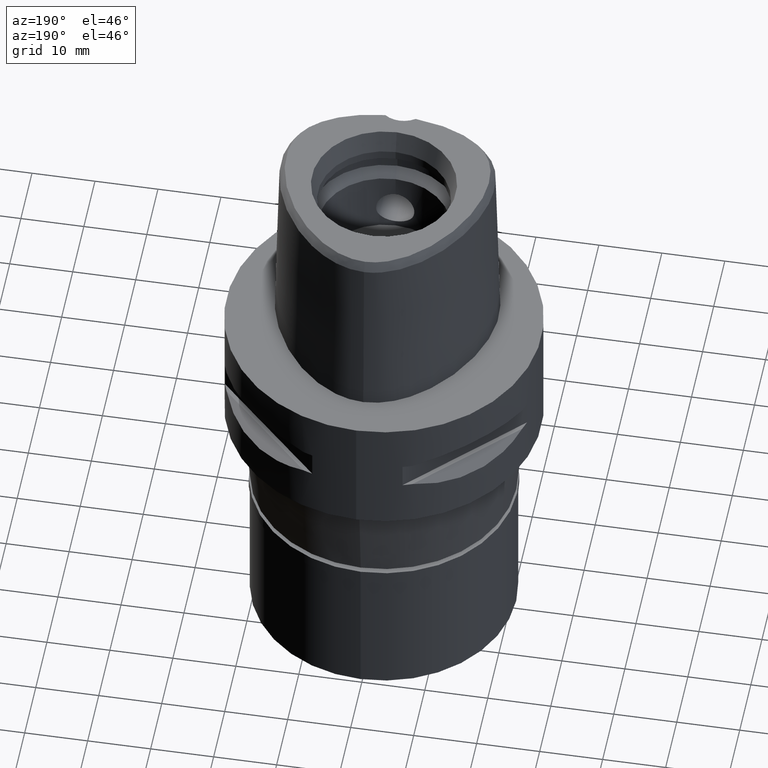
[diagram: clean part render]
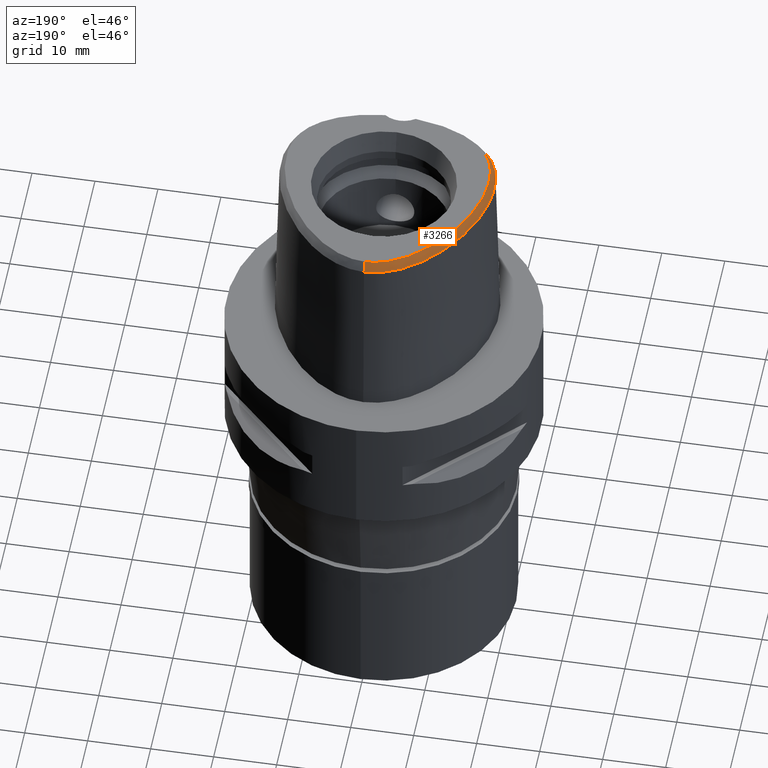
[diagram: same view with one face highlighted and labeled with its STEP entity id]
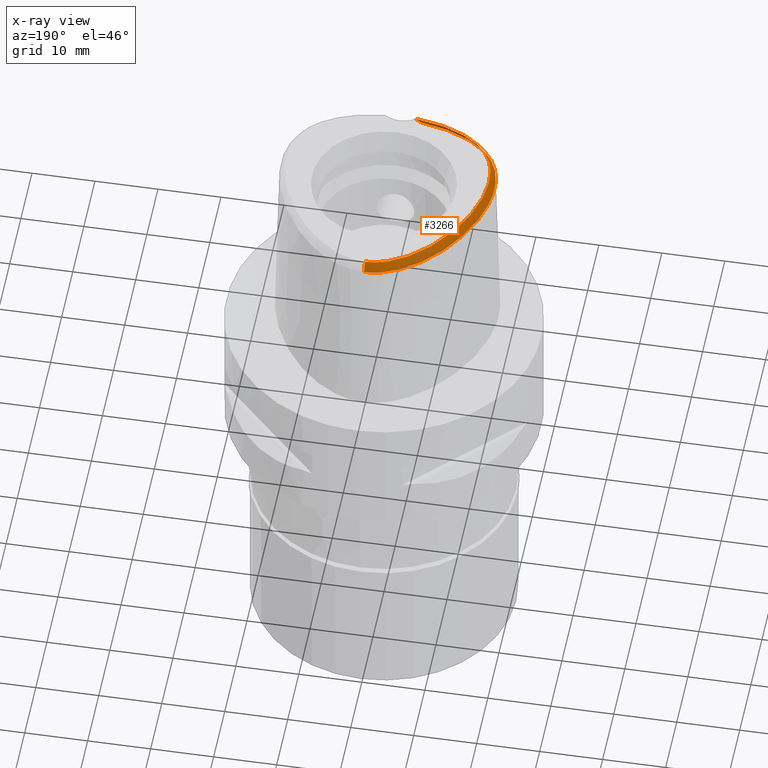
[diagram: x-ray of the same camera — body ghosted, the highlighted face saturated]
A machine part, auxiliary view. The second image highlights one B-rep face of the part: STEP entity #3266.
The next image is the same camera in x-ray: the body ghosted, the highlighted face saturated — about 0% of this face is hidden behind the body in this view.
In plain terms, the highlighted face is a freeform B-spline surface patch.
Its self-contained STEP definition (entity closure, byte-faithful):
#1 = CARTESIAN_POINT ( 'NONE',  ( -11.83722951849999916, -12.80788378177999931, 28.40663552301999673 ) ) ;
#7 = CARTESIAN_POINT ( 'NONE',  ( -2.653339375400999955, 17.67590620680000413, 28.40663473205999878 ) ) ;
#33 = CARTESIAN_POINT ( 'NONE',  ( -5.225633524312999434, 15.53130140821999916, 30.11401819342000152 ) ) ;
#34 = CARTESIAN_POINT ( 'NONE',  ( -3.168920966622999824, -15.55911077538999976, 28.52071192346999950 ) ) ;
#55 = CARTESIAN_POINT ( 'NONE',  ( -13.32796527302000023, 6.605714862294000511, 30.11401861684000281 ) ) ;
#76 = CARTESIAN_POINT ( 'NONE',  ( -16.56159240455999893, 0.6836726536322998982, 28.40663880677000463 ) ) ;
#99 = CARTESIAN_POINT ( 'NONE',  ( -8.732895794535000533, 13.25902739584999956, 29.54489146208999983 ) ) ;
#124 = CARTESIAN_POINT ( 'NONE',  ( -7.659224953783999368, 13.79547864862000139, 30.11401860424000176 ) ) ;
#150 = CARTESIAN_POINT ( 'NONE',  ( -16.78363000292000251, -0.4718735905139000431, 28.40663596567000226 ) ) ;
#169 = CARTESIAN_POINT ( 'NONE',  ( -16.02178155048000008, -4.371377125193999014, 30.11401857254999825 ) ) ;
#186 = CARTESIAN_POINT ( 'NONE',  ( -14.08052509618288184, -9.706873108418090368, 29.99999999999831246 ) ) ;
#191 = CARTESIAN_POINT ( 'NONE',  ( -16.57115275745999838, -6.776202632081000488, 28.40663482397999928 ) ) ;
#213 = CARTESIAN_POINT ( 'NONE',  ( -15.04149970408486148, -8.249836848500850195, 30.00000000000201084 ) ) ;
#220 = CARTESIAN_POINT ( 'NONE',  ( -13.21752621500000124, -11.81888056240000040, 28.40663477186999941 ) ) ;
#237 = CARTESIAN_POINT ( 'NONE',  ( -11.36350786441511751, -12.05063008428184901, 29.99999999998966516 ) ) ;
#239 = CARTESIAN_POINT ( 'NONE',  ( -0.6295828121033733016, 17.98203011041991317, 28.52071192347013806 ) ) ;
#243 = CARTESIAN_POINT ( 'NONE',  ( -17.00511376308999800, -2.589522729622999897, 28.40663488974999851 ) ) ;
#263 = CARTESIAN_POINT ( 'NONE',  ( -3.738627773282038991, -15.49270868800134338, 28.52071192347013806 ) ) ;
#267 = CARTESIAN_POINT ( 'NONE',  ( -15.97727044460000023, -1.663159882555999891, 30.11401868139000015 ) ) ;
#291 = CARTESIAN_POINT ( 'NONE',  ( -3.168920966622999824, -15.55911077538999976, 28.52071192346999950 ) ) ;
#296 = CARTESIAN_POINT ( 'NONE',  ( -2.398620502653999953, -15.06284888519000020, 29.54489098910000067 ) ) ;
#317 = CARTESIAN_POINT ( 'NONE',  ( -1.965560836468000172, -15.41645427873999985, 28.97576339197999928 ) ) ;
#349 = CARTESIAN_POINT ( 'NONE',  ( -0.04071256819188000253, 17.09460085939999985, 30.11401862359999981 ) ) ;
#365 = CARTESIAN_POINT ( 'NONE',  ( -11.32960910475999938, -11.99644222762000112, 30.11401859926999691 ) ) ;
#391 = CARTESIAN_POINT ( 'NONE',  ( -5.558863702196999768, -14.91827778882999844, 28.97576351928000093 ) ) ;
#398 = CARTESIAN_POINT ( 'NONE',  ( -6.301949014182999907E-11, 17.15328888647999861, 30.00000000000000000 ) ) ;
#423 = CARTESIAN_POINT ( 'NONE',  ( -11.57714403019000038, 10.53710606003999928, 28.97576329386999916 ) ) ;
#446 = CARTESIAN_POINT ( 'NONE',  ( -12.66732583588999894, 9.560231699177000664, 28.40663616023000060 ) ) ;
#457 = VERTEX_POINT ( 'NONE', #4731 ) ;
#466 = CARTESIAN_POINT ( 'NONE',  ( -15.62740735944000114, 0.4758161009387999463, 30.11401836429999790 ) ) ;
#492 = CARTESIAN_POINT ( 'NONE',  ( -11.32257379470000025, 10.34487956375000195, 29.54489094219000123 ) ) ;
#505 = CARTESIAN_POINT ( 'NONE',  ( -11.92713521269726940, 9.060544494663007598, 29.99999999999687361 ) ) ;
#513 = CARTESIAN_POINT ( 'NONE',  ( -15.64282996048000207, 1.724197001345000091, 29.54489172039999900 ) ) ;
#532 = CARTESIAN_POINT ( 'NONE',  ( -16.04083576397560407, -1.656498942829378151, 29.99999999999274891 ) ) ;
#538 = CARTESIAN_POINT ( 'NONE',  ( -15.64907509124000029, -6.519137041802000709, 30.11401864930000372 ) ) ;
#561 = CARTESIAN_POINT ( 'NONE',  ( -15.45595518024999926, -7.129583026248000444, 30.11401862390000161 ) ) ;
#580 = CARTESIAN_POINT ( 'NONE',  ( -13.06460239552716907, -11.91950051571923375, 28.52071192347013806 ) ) ;
#582 = CARTESIAN_POINT ( 'NONE',  ( -16.74745861096000255, -6.054613662261999707, 28.40663472298999892 ) ) ;
#602 = CARTESIAN_POINT ( 'NONE',  ( -9.750168658358861151, -12.92810664733730519, 30.00000000000335731 ) ) ;
#608 = CARTESIAN_POINT ( 'NONE',  ( -14.26907056455796763, -10.79012254419130379, 28.52071192347013806 ) ) ;
#611 = CARTESIAN_POINT ( 'NONE',  ( -16.68640588710000117, -2.603947575465999975, 28.97576280802999804 ) ) ;
#628 = CARTESIAN_POINT ( 'NONE',  ( -0.1909045559979715423, 17.15328888648428673, 29.99999999999513989 ) ) ;
#637 = CARTESIAN_POINT ( 'NONE',  ( -16.11244024136000164, -8.075280267637999998, 28.40663527904999697 ) ) ;
#661 = CARTESIAN_POINT ( 'NONE',  ( -12.56579598360000105, -12.31882086722999858, 28.40663571237999818 ) ) ;
#680 = CARTESIAN_POINT ( 'NONE',  ( -6.301949014182999907E-11, 17.15328888647999861, 30.00000000000000000 ) ) ;
#688 = CARTESIAN_POINT ( 'NONE',  ( -11.02677746408999937, -13.28207482354000035, 28.40663483963000147 ) ) ;
#702 = CARTESIAN_POINT ( 'NONE',  ( -3.077178008231339135, 16.60571267458073663, 29.99999999999918998 ) ) ;
#707 = CARTESIAN_POINT ( 'NONE',  ( -4.241009202445999549, -15.16607855898000068, 28.97576247166000130 ) ) ;
#713 = CARTESIAN_POINT ( 'NONE',  ( 0.3145493129227999729, 17.40396403471999776, 29.54489074029999784 ) ) ;
#732 = CARTESIAN_POINT ( 'NONE',  ( -1.919696389590999974, -14.78041898903999929, 30.11401857957999795 ) ) ;
#738 = CARTESIAN_POINT ( 'NONE',  ( -0.6080464866304999827, 17.71300263165999667, 28.97576268902999885 ) ) ;
#757 = CARTESIAN_POINT ( 'NONE',  ( -2.155232874694000156, -15.72244622580999618, 28.40663581900999901 ) ) ;
#765 = CARTESIAN_POINT ( 'NONE',  ( -1.956519700926999894, 17.84621461165999889, 28.40663523765999798 ) ) ;
#787 = CARTESIAN_POINT ( 'NONE',  ( -12.13855418674999953, 9.203269021045999310, 29.54489108920000007 ) ) ;
#805 = CARTESIAN_POINT ( 'NONE',  ( -6.543383831838000653, 15.83679571323999902, 28.40663869855000101 ) ) ;
#826 = CARTESIAN_POINT ( 'NONE',  ( -13.60965459635000130, 6.755402542947000377, 29.54489083712000408 ) ) ;
#849 = CARTESIAN_POINT ( 'NONE',  ( -6.366215100036000329, 15.57148072335999878, 28.97576525638000078 ) ) ;
#862 = LINE ( 'NONE', #3231, #2092 ) ;
#874 = CARTESIAN_POINT ( 'NONE',  ( -16.15398577350000053, -0.5750111649017001225, 29.54489103362000080 ) ) ;
#886 = CARTESIAN_POINT ( 'NONE',  ( -15.29229544369958660, -7.721097396977702587, 29.99999999999210232 ) ) ;
#895 = CARTESIAN_POINT ( 'NONE',  ( -14.03105290439000008, -9.666387346367001143, 30.11401860606000014 ) ) ;
#916 = CARTESIAN_POINT ( 'NONE',  ( -13.14555507508000076, -10.61048820582000118, 30.11401865267000133 ) ) ;
#931 = CARTESIAN_POINT ( 'NONE',  ( -6.650243356160196129, -14.05992414833103687, 30.00000000000373745 ) ) ;
#939 = CARTESIAN_POINT ( 'NONE',  ( -13.79851836617000060, -11.31042762439000171, 28.40663477685999894 ) ) ;
#953 = CARTESIAN_POINT ( 'NONE',  ( -6.862723739080031748, 14.51536572209143650, 29.99999999999861089 ) ) ;
#955 = CARTESIAN_POINT ( 'NONE',  ( -7.523733151595013879, 15.26501052509951606, 28.52071192347013806 ) ) ;
#960 = CARTESIAN_POINT ( 'NONE',  ( -17.01854018016999959, -3.549655222895000239, 28.40663515449000087 ) ) ;
#989 = CARTESIAN_POINT ( 'NONE',  ( -15.95643431331000173, -6.604825571894999747, 29.54489070753000135 ) ) ;
#1012 = CARTESIAN_POINT ( 'NONE',  ( -11.33338053122143663, -13.08225253589766268, 28.52071192347013806 ) ) ;
#1016 = CARTESIAN_POINT ( 'NONE',  ( -6.801770933166999988, -14.61366819965000019, 28.97576531505000119 ) ) ;
#1036 = CARTESIAN_POINT ( 'NONE',  ( -2.686454506205000188E-11, 17.98202997909999823, 28.52071728569000086 ) ) ;
#1038 = CARTESIAN_POINT ( 'NONE',  ( -2.105487667195999890, -15.08669077301999906, 29.54489099172999644 ) ) ;
#1045 = CARTESIAN_POINT ( 'NONE',  ( -4.469877050503001215, 15.94107690520000098, 30.11401828282999915 ) ) ;
#1065 = CARTESIAN_POINT ( 'NONE',  ( -7.857689101643000384, -13.95854682352000076, 29.54489164121000044 ) ) ;
#1071 = CARTESIAN_POINT ( 'NONE',  ( -2.394345451733999930, 16.75437785611000052, 30.11401865587999893 ) ) ;
#1086 = CARTESIAN_POINT ( 'NONE',  ( -6.717573078274999610, -14.30597462861000047, 29.54489184028000182 ) ) ;
#1093 = CARTESIAN_POINT ( 'NONE',  ( -3.746773177850000192, 16.27674324849999721, 30.11401857618999856 ) ) ;
#1094 = CARTESIAN_POINT ( 'NONE',  ( -2.674237912677600804, -15.00654602986145747, 29.59847415409140581 ) ) ;
#1113 = CARTESIAN_POINT ( 'NONE',  ( -10.56968728536999969, -12.44116404312999968, 30.11401864818000362 ) ) ;
#1119 = CARTESIAN_POINT ( 'NONE',  ( 0.4774934247477999882, 17.39557164632999786, 29.54489064309999691 ) ) ;
#1139 = EDGE_CURVE ( 'NONE', #2071, #3203, #3945, .T. ) ;
#1147 = CARTESIAN_POINT ( 'NONE',  ( 0.5126525366654999250, 18.03225820844000182, 28.40663459844000016 ) ) ;
#1169 = CARTESIAN_POINT ( 'NONE',  ( -14.24283791843000024, 5.483566541793999605, 29.54489101333999912 ) ) ;
#1194 = CARTESIAN_POINT ( 'NONE',  ( -16.46880788820999797, -0.5234423777077999995, 28.97576349965000020 ) ) ;
#1217 = CARTESIAN_POINT ( 'NONE',  ( -8.072703321327999504, 14.28139862189000020, 28.97576317057999873 ) ) ;
#1239 = CARTESIAN_POINT ( 'NONE',  ( -14.53202373795000035, 5.618204298425999887, 28.97576345399999909 ) ) ;
#1248 = DIRECTION ( 'NONE',  ( -2.132269272645104913E-11, -0.4887572537797239547, 0.8724198226070418727 ) ) ;
#1254 = CARTESIAN_POINT ( 'NONE',  ( -14.01158736113118763, 5.375902008631136653, 29.99999999999281997 ) ) ;
#1261 = CARTESIAN_POINT ( 'NONE',  ( -8.512843620537999811, 13.02806641585000058, 30.11401846025999873 ) ) ;
#1275 = CARTESIAN_POINT ( 'NONE',  ( -15.39727819201156045, 1.655076005305899489, 30.00000000000076028 ) ) ;
#1281 = CARTESIAN_POINT ( 'NONE',  ( -14.08215569813000023, -10.57643418323999995, 28.97576278041000108 ) ) ;
#1299 = CARTESIAN_POINT ( 'NONE',  ( -5.437876102061627748, -14.35707869331031361, 29.99999999999912603 ) ) ;
#1305 = CARTESIAN_POINT ( 'NONE',  ( -16.36769801111000078, -2.618372421309999698, 29.54489072630999758 ) ) ;
#1320 = CARTESIAN_POINT ( 'NONE',  ( -12.68647747556788552, 7.869569494475668670, 29.99999999999937472 ) ) ;
#1325 = CARTESIAN_POINT ( 'NONE',  ( -8.702202515497218016, -14.36510996956360486, 28.52071192347013806 ) ) ;
#1331 = CARTESIAN_POINT ( 'NONE',  ( -16.65797393885000233, -4.420745740806999891, 28.97576345527999919 ) ) ;
#1350 = CARTESIAN_POINT ( 'NONE',  ( -14.76322153899139522, -8.744676018998751132, 29.99999999999901590 ) ) ;
#1358 = CARTESIAN_POINT ( 'NONE',  ( -14.98108563199000010, -8.877532485788000471, 29.54489076864999930 ) ) ;
#1388 = CARTESIAN_POINT ( 'NONE',  ( -16.04899013510999950, -2.632797267152999776, 30.11401864458999711 ) ) ;
#1409 = CARTESIAN_POINT ( 'NONE',  ( -16.47905549557034632, -6.962316292879549451, 28.52071192347013806 ) ) ;
#1413 = CARTESIAN_POINT ( 'NONE',  ( -2.426999533006000132, -15.38044155370999988, 28.97576339942999724 ) ) ;
#1419 = CARTESIAN_POINT ( 'NONE',  ( -3.374816760122000048, 17.44795315277999848, 28.40663391803999716 ) ) ;
#1431 = CARTESIAN_POINT ( 'NONE',  ( -0.5679008307148744050, 17.14013367087414252, 29.99999999999649702 ) ) ;
#1437 = CARTESIAN_POINT ( 'NONE',  ( -8.904586672834001959, -13.57370026533000029, 29.54489073869000038 ) ) ;
#1444 = CARTESIAN_POINT ( 'NONE',  ( -0.6303538327862999724, 18.03132315512000261, 28.40663470461999651 ) ) ;
#1464 = CARTESIAN_POINT ( 'NONE',  ( -9.022888272798999409, -13.86997488408000123, 28.97576283587999768 ) ) ;
#1471 = CARTESIAN_POINT ( 'NONE',  ( -3.055879457854000059, 16.54544330058000057, 30.11401871412999753 ) ) ;
#1488 = CARTESIAN_POINT ( 'NONE',  ( -4.140420125058000167, -14.53606537622999895, 30.11401868204000110 ) ) ;
#1495 = CARTESIAN_POINT ( 'NONE',  ( -1.195494945532000086, 17.33132862879000058, 29.54489065536999703 ) ) ;
#1522 = CARTESIAN_POINT ( 'NONE',  ( -5.386548974955999824, 15.80678778820000119, 29.54489252721000270 ) ) ;
#1546 = CARTESIAN_POINT ( 'NONE',  ( -13.95365209891999925, 5.348928785161000121, 30.11401857267999915 ) ) ;
#1564 = CARTESIAN_POINT ( 'NONE',  ( -15.83916365878000221, -0.6265799520956000235, 30.11401856759999873 ) ) ;
#1587 = CARTESIAN_POINT ( 'NONE',  ( -8.952947968533001344, 13.48998837585000032, 28.97576446391000005 ) ) ;
#1614 = CARTESIAN_POINT ( 'NONE',  ( -12.63170230805000038, 7.836649803086999100, 30.11401864204999868 ) ) ;
#1638 = CARTESIAN_POINT ( 'NONE',  ( -15.94989987730999914, 1.810634898482000210, 28.97576504525000374 ) ) ;
#1652 = CARTESIAN_POINT ( 'NONE',  ( -4.150496093831153033, -14.59917355179925025, 29.99999999999765876 ) ) ;
#1659 = CARTESIAN_POINT ( 'NONE',  ( -14.27799502186000069, -9.868473396044000978, 29.54489088013000142 ) ) ;
#1674 = CARTESIAN_POINT ( 'NONE',  ( -14.55898035934398393, 4.112421202110739138, 29.99999999999880629 ) ) ;
#1677 = CARTESIAN_POINT ( 'NONE',  ( -5.902447850708036903, -15.16907854012041312, 28.52071192347013806 ) ) ;
#1682 = CARTESIAN_POINT ( 'NONE',  ( -13.58086393580999918, -11.07711448486000094, 28.97576273546999914 ) ) ;
#1701 = CARTESIAN_POINT ( 'NONE',  ( -15.90223487643863542, -0.6162487013688278115, 29.99999999999354827 ) ) ;
#1704 = CARTESIAN_POINT ( 'NONE',  ( -16.01658395503485721, -8.155509241190127767, 28.52071192347013806 ) ) ;
#1707 = CARTESIAN_POINT ( 'NONE',  ( -16.56800696872999978, -5.234466359421999115, 28.97576287607999745 ) ) ;
#1722 = CARTESIAN_POINT ( 'NONE',  ( -7.776737509123385017, -13.71663015822026921, 30.00000000000116529 ) ) ;
#1732 = CARTESIAN_POINT ( 'NONE',  ( -16.33987774466000431, -4.396061433000999052, 29.54489101391000361 ) ) ;
#1752 = CARTESIAN_POINT ( 'NONE',  ( -4.422474562381739638, 17.08283562089923535, 28.52071192347013806 ) ) ;
#1755 = CARTESIAN_POINT ( 'NONE',  ( -15.75685809349999822, -7.235768287442000180, 29.54489080892000175 ) ) ;
#1784 = CARTESIAN_POINT ( 'NONE',  ( -3.228233292871000248, -15.62227688063000031, 28.40663553569000044 ) ) ;
#1805 = CARTESIAN_POINT ( 'NONE',  ( -1.988493059906000004, -15.73447192359000013, 28.40663579816999729 ) ) ;
#1822 = CARTESIAN_POINT ( 'NONE',  ( -2.411640998825650861, 16.81591728050912593, 29.99999999999808153 ) ) ;
#1835 = EDGE_CURVE ( 'NONE', #3101, #457, #4444, .T. ) ;
#1836 = CARTESIAN_POINT ( 'NONE',  ( -2.480676759622999938, 17.06155397299999876, 29.54489068127000095 ) ) ;
#1855 = CARTESIAN_POINT ( 'NONE',  ( -7.958921517671999624, -14.26107093385000013, 28.97576486703000143 ) ) ;
#1861 = CARTESIAN_POINT ( 'NONE',  ( -0.04519603365432999648, 18.05175493657000274, 28.40663518310000057 ) ) ;
#1877 = CARTESIAN_POINT ( 'NONE',  ( -3.190744205006000200, -15.30557710740000132, 28.97576322324999865 ) ) ;
#1884 = CARTESIAN_POINT ( 'NONE',  ( -4.757226510579999790, 16.51081351667000163, 28.97576605777000225 ) ) ;
#1905 = CARTESIAN_POINT ( 'NONE',  ( -9.374288402887000160, 12.16199988998999970, 30.11401851609999980 ) ) ;
#1928 = CARTESIAN_POINT ( 'NONE',  ( -16.25696979414999888, 1.897072795619999974, 28.40663837010999870 ) ) ;
#1947 = CARTESIAN_POINT ( 'NONE',  ( -7.401489720444000220, 15.22772772642000128, 28.40663430835000014 ) ) ;
#1975 = CARTESIAN_POINT ( 'NONE',  ( -10.96200840972000101, 11.81829023174000071, 28.40663440708999588 ) ) ;
#1997 = CARTESIAN_POINT ( 'NONE',  ( -16.25019738952000026, 0.6143871360678000437, 28.97576532595000032 ) ) ;
#2017 = CARTESIAN_POINT ( 'NONE',  ( -14.70863999115999832, -8.711391453850998445, 30.11401863398999978 ) ) ;
#2044 = CARTESIAN_POINT ( 'NONE',  ( -13.36320950545000130, -10.84380134533999929, 29.54489069406999491 ) ) ;
#2060 = CARTESIAN_POINT ( 'NONE',  ( -2.535517866336004733, -14.79323888261728470, 29.99999999999774403 ) ) ;
#2063 = CARTESIAN_POINT ( 'NONE',  ( -15.07117015427468942, -9.793013966485478505, 28.52071192347013806 ) ) ;
#2066 = CARTESIAN_POINT ( 'NONE',  ( -14.65421435684000073, -9.374348565223002083, 29.54489070058999900 ) ) ;
#2071 = VERTEX_POINT ( 'NONE', #3579 ) ;
#2083 = CARTESIAN_POINT ( 'NONE',  ( -8.809985523416015596, -13.33678107331045304, 30.00000000000230926 ) ) ;
#2090 = CARTESIAN_POINT ( 'NONE',  ( -15.52655154783000135, -7.822261849482000429, 29.54489083750999967 ) ) ;
#2092 = VECTOR ( 'NONE', #1248, 1000.000000000000114 ) ;
#2118 = CARTESIAN_POINT ( 'NONE',  ( -14.91444497604999953, -9.559017420627998973, 28.97576275015000036 ) ) ;
#2149 = CARTESIAN_POINT ( 'NONE',  ( -0.04370154516684000151, 17.73270357751000148, 28.97576299660000032 ) ) ;
#2165 = CARTESIAN_POINT ( 'NONE',  ( -2.370241472301999774, -14.74525621667999964, 30.11401857875999610 ) ) ;
#2172 = CARTESIAN_POINT ( 'NONE',  ( -1.283891155610999979, 17.96336295392999816, 28.40663464138000194 ) ) ;
#2187 = CARTESIAN_POINT ( 'NONE',  ( -2.455378563358000310, -15.69803422221999867, 28.40663580975999736 ) ) ;
#2213 = CARTESIAN_POINT ( 'NONE',  ( -9.141189872764000413, -14.16624950283000040, 28.40663493307000209 ) ) ;
#2221 = CARTESIAN_POINT ( 'NONE',  ( -1.239693050571000210, 17.64734579135999937, 28.97576264836999727 ) ) ;
#2247 = CARTESIAN_POINT ( 'NONE',  ( -4.613551780541999214, 16.22594521092999642, 29.54489217029999892 ) ) ;
#2268 = CARTESIAN_POINT ( 'NONE',  ( -7.209049984288999902, 14.97328189854000158, 28.97576243430000176 ) ) ;
#2291 = CARTESIAN_POINT ( 'NONE',  ( -15.26241402284000159, 2.949523617500999784, 29.54489073653000020 ) ) ;
#2315 = CARTESIAN_POINT ( 'NONE',  ( -14.79562122443999961, 4.207662558686999787, 29.54489068358999759 ) ) ;
#2338 = CARTESIAN_POINT ( 'NONE',  ( -10.47414139143000078, 11.40716578372000001, 29.54489058845000216 ) ) ;
#2354 = CARTESIAN_POINT ( 'NONE',  ( -15.99949242928999915, -5.153835065648417313, 29.99999999999788614 ) ) ;
#2361 = CARTESIAN_POINT ( 'NONE',  ( -14.17303324301999901, 7.054777904253999310, 28.40663527767999952 ) ) ;
#2377 = CARTESIAN_POINT ( 'NONE',  ( -7.700642921101437111, 13.84415306341875684, 30.00000000000139266 ) ) ;
#2385 = CARTESIAN_POINT ( 'NONE',  ( -15.26821094403000068, -8.366955599945001154, 29.54489063426999707 ) ) ;
#2400 = CARTESIAN_POINT ( 'NONE',  ( -11.11900396222728737, 10.19116357425229502, 29.99999999999663913 ) ) ;
#2404 = CARTESIAN_POINT ( 'NONE',  ( -16.97607013303999679, -4.445430048612999840, 28.40663589664000099 ) ) ;
#2428 = CARTESIAN_POINT ( 'NONE',  ( -16.06152351419000013, -3.534891097266000148, 30.11401862565000087 ) ) ;
#2444 = CARTESIAN_POINT ( 'NONE',  ( -5.257871200567698189, 15.58649213536823730, 30.00000000000101252 ) ) ;
#2451 = CARTESIAN_POINT ( 'NONE',  ( -16.12277511976000000, -5.924239706715000331, 29.54489067867999808 ) ) ;
#2479 = CARTESIAN_POINT ( 'NONE',  ( -16.43511686536000127, -5.989426684488000419, 28.97576270082999983 ) ) ;
#2486 = ORIENTED_EDGE ( 'NONE', *, *, #3917, .F. ) ;
#2505 = CARTESIAN_POINT ( 'NONE',  ( -3.115766029276000104, -14.67217756093999981, 30.11401859836999861 ) ) ;
#2530 = CARTESIAN_POINT ( 'NONE',  ( -9.723045766621000396, -12.87023321436999979, 30.11401866096000290 ) ) ;
#2538 = CARTESIAN_POINT ( 'NONE',  ( -3.162191891942999877, 16.84627991797999869, 29.54489044876999770 ) ) ;
#2554 = CARTESIAN_POINT ( 'NONE',  ( -5.626091705186000880, -15.23011383175999889, 28.40663599620999946 ) ) ;
#2578 = CARTESIAN_POINT ( 'NONE',  ( -4.291303741141000216, -15.48108515034999932, 28.40663436647000140 ) ) ;
#2585 = CARTESIAN_POINT ( 'NONE',  ( 0.4950729807066000521, 17.71391492737999940, 28.97576262076999853 ) ) ;
#2587 = CARTESIAN_POINT ( 'NONE',  ( -2.935844350001655556, -15.25651563095081720, 29.10537812858140327 ) ) ;
#2603 = CARTESIAN_POINT ( 'NONE',  ( -8.060153933702000728, -14.56359504417000039, 28.40663809284000152 ) ) ;
#2608 = CARTESIAN_POINT ( 'NONE',  ( -1.151296840492999962, 17.01531146622000179, 30.11401866235999947 ) ) ;
#2637 = CARTESIAN_POINT ( 'NONE',  ( -1.890926352841999947, 17.53394318881000302, 28.97576303167000233 ) ) ;
#2658 = CARTESIAN_POINT ( 'NONE',  ( -14.49969466191999956, 4.088560360299000607, 30.11401865530000066 ) ) ;
#2681 = CARTESIAN_POINT ( 'NONE',  ( -15.09154778695000054, 4.326764757075999945, 28.97576271187000430 ) ) ;
#2707 = CARTESIAN_POINT ( 'NONE',  ( -9.839158079808999702, 12.59897324528999896, 28.97576396228000206 ) ) ;
#2727 = CARTESIAN_POINT ( 'NONE',  ( -14.82120955747000046, 5.752842055059000259, 28.40663589466999994 ) ) ;
#2742 = CARTESIAN_POINT ( 'NONE',  ( -10.27907733182139971, 11.24278573582391516, 29.99999999999457856 ) ) ;
#2748 = CARTESIAN_POINT ( 'NONE',  ( -10.71807490057000045, 11.61272800773000036, 28.97576249777000257 ) ) ;
#2762 = CARTESIAN_POINT ( 'NONE',  ( -15.71065119878850602, -6.536303815289822516, 29.99999999999695888 ) ) ;
#2772 = CARTESIAN_POINT ( 'NONE',  ( -16.88390791323999807, -5.279269966179000129, 28.40663499560000105 ) ) ;
#2792 = CARTESIAN_POINT ( 'NONE',  ( -16.38052906951999788, -3.539812472474999971, 29.54489080193000206 ) ) ;
#2806 = CARTESIAN_POINT ( 'NONE',  ( -9.420854217684006215, 12.20577134109615791, 29.99999999999462474 ) ) ;
#2809 = CARTESIAN_POINT ( 'NONE',  ( -10.91764528035197657, 11.98972044748668786, 28.52071192347013806 ) ) ;
#2813 = CARTESIAN_POINT ( 'NONE',  ( -15.93620507971000144, -5.144859145909999931, 30.11401863702000270 ) ) ;
#2834 = CARTESIAN_POINT ( 'NONE',  ( -15.58740380353447463, -8.999391780896800697, 28.52071192347013806 ) ) ;
#2838 = CARTESIAN_POINT ( 'NONE',  ( -16.26379353539000050, -6.690514101988000562, 28.97576276575000165 ) ) ;
#2864 = CARTESIAN_POINT ( 'NONE',  ( -4.190714663751999858, -14.85107196761000026, 29.54489057684999764 ) ) ;
#2891 = CARTESIAN_POINT ( 'NONE',  ( -5.491635699207999544, -14.60644174589000066, 29.54489104234999886 ) ) ;
#2897 = CARTESIAN_POINT ( 'NONE',  ( -0.5634317943188998923, 17.07636158473000165, 30.11401865783999909 ) ) ;
#2913 = CARTESIAN_POINT ( 'NONE',  ( -9.858430597470999146, -13.15911041111999857, 29.54489066101999839 ) ) ;
#2943 = CARTESIAN_POINT ( 'NONE',  ( -6.633375223383000119, -13.99828105757000074, 30.11401836551999978 ) ) ;
#2949 = CARTESIAN_POINT ( 'NONE',  ( -3.268504326032999785, 17.14711653537999680, 28.97576218339999699 ) ) ;
#2966 = CARTESIAN_POINT ( 'NONE',  ( -3.153255117141000152, -14.98887733417000057, 29.54489091080999685 ) ) ;
#2972 = CARTESIAN_POINT ( 'NONE',  ( 0.3380976695689000278, 18.04132026593000049, 28.40663493874000167 ) ) ;
#2998 = CARTESIAN_POINT ( 'NONE',  ( 0.4599138687889000043, 17.07722836526999899, 30.11401866543000239 ) ) ;
#3021 = CARTESIAN_POINT ( 'NONE',  ( -7.016610248134000472, 14.71883607067000099, 29.54489056024999982 ) ) ;
#3043 = CARTESIAN_POINT ( 'NONE',  ( -15.86621986925999828, 3.155581645225999932, 28.40663492552000235 ) ) ;
#3062 = CARTESIAN_POINT ( 'NONE',  ( -6.011877636431999683, 15.04085074358999918, 30.11401837204000032 ) ) ;
#3089 = CARTESIAN_POINT ( 'NONE',  ( -13.45193860816000075, 8.329609059795000547, 28.40663492535000145 ) ) ;
#3101 = VERTEX_POINT ( 'NONE', #3521 ) ;
#3102 = CARTESIAN_POINT ( 'NONE',  ( -15.87300767660611989, -5.872112237379134569, 29.99999999999885247 ) ) ;
#3107 = CARTESIAN_POINT ( 'NONE',  ( -9.173000142531000378, 13.72094935584999931, 28.40663746574000115 ) ) ;
#3129 = CARTESIAN_POINT ( 'NONE',  ( -14.52493713933000130, -10.07055944572000072, 28.97576315419999915 ) ) ;
#3145 = CARTESIAN_POINT ( 'NONE',  ( -6.047371482395615949, 15.09400374235496223, 29.99999999999455369 ) ) ;
#3153 = CARTESIAN_POINT ( 'NONE',  ( -12.61162848414000059, -11.07785901572000142, 30.11401865303000136 ) ) ;
#3166 = CARTESIAN_POINT ( 'NONE',  ( -13.38439869301560137, 6.635703175839565482, 30.00000000000206768 ) ) ;
#3169 = CARTESIAN_POINT ( 'NONE',  ( -15.84228689413025570, 3.460033471612302236, 28.52071192347013806 ) ) ;
#3172 = CARTESIAN_POINT ( 'NONE',  ( -14.39398373763000194, -9.189679709818999953, 30.11401865103000119 ) ) ;
#3187 = CARTESIAN_POINT ( 'NONE',  ( -3.123276563984859866, -14.73562494724495409, 29.99999999999532463 ) ) ;
#3197 = CARTESIAN_POINT ( 'NONE',  ( -16.29455888473999892, -1.629911576774000004, 29.54489057941999874 ) ) ;
#3203 = VERTEX_POINT ( 'NONE', #398 ) ;
#3204 = B_SPLINE_CURVE_WITH_KNOTS ( 'NONE', 3,
 ( #3721, #1094, #2587, #34 ),
 .UNSPECIFIED., .F., .F.,
 ( 4, 4 ),
 ( 0.0000000000000000000, 1.000000000000000000 ),
 .UNSPECIFIED. ) ;
#3217 = CARTESIAN_POINT ( 'NONE',  ( -1.893775706189556818, 17.84807082153934488, 28.52071192347013806 ) ) ;
#3221 = CARTESIAN_POINT ( 'NONE',  ( -16.92913576501999628, -1.563414965211999963, 28.40663437548000303 ) ) ;
#3231 = CARTESIAN_POINT ( 'NONE',  ( -2.686454506205000188E-11, 17.98202997909999823, 28.52071728569000086 ) ) ;
#3247 = CARTESIAN_POINT ( 'NONE',  ( -9.993815428320999672, -13.44798760787000091, 28.97576266107999743 ) ) ;
#3263 = CARTESIAN_POINT ( 'NONE',  ( -3.771910472264643488, 16.33551310926078770, 29.99999999999288036 ) ) ;
#3266 = ADVANCED_FACE ( 'NONE', ( #4049 ), #3775, .F. ) ;
#3297 = CARTESIAN_POINT ( 'NONE',  ( -12.19426133328999917, -11.80002600553000036, 29.54489096127999659 ) ) ;
#3321 = CARTESIAN_POINT ( 'NONE',  ( -8.786285072869999269, -13.27742564657000024, 30.11401864150000307 ) ) ;
#3328 = CARTESIAN_POINT ( 'NONE',  ( 0.3263234912458999881, 17.72264215032999957, 28.97576283951999798 ) ) ;
#3346 = CARTESIAN_POINT ( 'NONE',  ( -6.885968788058999479, -14.92136177068999991, 28.40663878982000057 ) ) ;
#3353 = CARTESIAN_POINT ( 'NONE',  ( -4.900901240617999477, 16.79568182240000240, 28.40663994523999847 ) ) ;
#3375 = CARTESIAN_POINT ( 'NONE',  ( -13.17852650811999915, 8.165289307559000065, 28.97576283090999993 ) ) ;
#3395 = CARTESIAN_POINT ( 'NONE',  ( -8.279442505100998773, 14.52435860853000094, 28.40663545375000254 ) ) ;
#3420 = CARTESIAN_POINT ( 'NONE',  ( -6.189046368234000894, 15.30616573346999942, 29.54489181421000055 ) ) ;
#3445 = CARTESIAN_POINT ( 'NONE',  ( -7.865964137555999436, 14.03843863526000035, 29.54489088741000202 ) ) ;
#3461 = CARTESIAN_POINT ( 'NONE',  ( -15.68979199461377050, 0.4896967076515694739, 29.99999999999779021 ) ) ;
#3473 = CARTESIAN_POINT ( 'NONE',  ( -12.40294001132000012, 9.381750360110999054, 28.97576362471000166 ) ) ;
#3487 = CARTESIAN_POINT ( 'NONE',  ( -2.406542353497000075, -14.80491723099000012, 30.00000000000000000 ) ) ;
#3491 = CARTESIAN_POINT ( 'NONE',  ( -15.25353127282000010, -9.043673517724998945, 28.97576290331000237 ) ) ;
#3507 = CARTESIAN_POINT ( 'NONE',  ( -14.44611813752839069, -9.226676124712991367, 29.99999999999015188 ) ) ;
#3513 = CARTESIAN_POINT ( 'NONE',  ( -15.81043337417000316, -5.859052728940999266, 30.11401865652999987 ) ) ;
#3521 = CARTESIAN_POINT ( 'NONE',  ( -3.168920966622999824, -15.55911077538999976, 28.52071192346999950 ) ) ;
#3531 = CARTESIAN_POINT ( 'NONE',  ( -13.18915979441310427, -10.65722997876820699, 29.99999999999537792 ) ) ;
#3541 = CARTESIAN_POINT ( 'NONE',  ( -14.77187925681000102, -10.27264549539999905, 28.40663542828000132 ) ) ;
#3558 = CARTESIAN_POINT ( 'NONE',  ( -15.51623783590989980, -7.150856098906432479, 29.99999999999823075 ) ) ;
#3565 = CARTESIAN_POINT ( 'NONE',  ( -15.81949589458999839, -7.948771058559999325, 28.97576305828000187 ) ) ;
#3579 = CARTESIAN_POINT ( 'NONE',  ( -2.406542353497000075, -14.80491723099000012, 30.00000000000000000 ) ) ;
#3590 = CARTESIAN_POINT ( 'NONE',  ( -13.84946367535999912, -10.35810296141000109, 29.54489071403999745 ) ) ;
#3598 = ORIENTED_EDGE ( 'NONE', *, *, #1835, .F. ) ;
#3640 = CARTESIAN_POINT ( 'NONE',  ( -5.424407696219000208, -14.29460570295000110, 30.11401856541999678 ) ) ;
#3646 = ORIENTED_EDGE ( 'NONE', *, *, #4197, .F. ) ;
#3647 = CARTESIAN_POINT ( 'NONE',  ( -1.759739656672000052, 16.90940034312999884, 30.11401861969999771 ) ) ;
#3654 = ORIENTED_EDGE ( 'NONE', *, *, #1139, .T. ) ;
#3673 = CARTESIAN_POINT ( 'NONE',  ( -0.04220705667935999855, 17.41365221846000111, 29.54489081010000007 ) ) ;
#3690 = CARTESIAN_POINT ( 'NONE',  ( -10.12920025917000011, -13.73686480461999970, 28.40663466114000002 ) ) ;
#3720 = CARTESIAN_POINT ( 'NONE',  ( -3.872246832549000040, 16.57009499487999804, 29.54489099932999707 ) ) ;
#3721 = CARTESIAN_POINT ( 'NONE',  ( -2.406542353497000075, -14.80491723099000012, 30.00000000000000000 ) ) ;
#3742 = CARTESIAN_POINT ( 'NONE',  ( -10.07159291826999947, 12.81745992293999947, 28.40663668536999964 ) ) ;
#3764 = CARTESIAN_POINT ( 'NONE',  ( -15.33576004365000145, 1.637759104206999883, 30.11401839554999782 ) ) ;
#3775 = B_SPLINE_SURFACE_WITH_KNOTS ( 'NONE', 3, 3, ( 
 ( #2998, #1119, #2585, #1147 ),
 ( #4098, #713, #3328, #2972 ),
 ( #349, #3673, #2149, #1861 ),
 ( #2897, #4427, #738, #1444 ),
 ( #2608, #1495, #2221, #2172 ),
 ( #3647, #4073, #2637, #765 ),
 ( #1071, #1836, #4782, #7 ),
 ( #1471, #2538, #2949, #1419 ),
 ( #1093, #3720, #4402, #4454 ),
 ( #1045, #2247, #1884, #3353 ),
 ( #33, #1522, #4352, #4005 ),
 ( #3062, #3420, #849, #805 ),
 ( #4567, #3021, #2268, #1947 ),
 ( #124, #3445, #1217, #3395 ),
 ( #1261, #99, #1587, #3107 ),
 ( #1905, #4516, #2707, #3742 ),
 ( #4162, #2338, #2748, #1975 ),
 ( #3810, #492, #423, #4476 ),
 ( #4142, #787, #3473, #446 ),
 ( #1614, #3832, #3375, #3089 ),
 ( #55, #826, #4542, #2361 ),
 ( #1546, #1169, #1239, #2727 ),
 ( #2658, #2315, #2681, #4119 ),
 ( #4185, #2291, #3789, #3043 ),
 ( #3764, #513, #1638, #1928 ),
 ( #466, #4495, #1997, #76 ),
 ( #1564, #874, #1194, #150 ),
 ( #267, #3197, #4638, #3221 ),
 ( #1388, #1305, #611, #243 ),
 ( #2428, #2792, #4205, #960 ),
 ( #169, #1732, #1331, #2404 ),
 ( #2813, #3877, #1707, #2772 ),
 ( #3513, #2451, #2479, #582 ),
 ( #538, #989, #2838, #191 ),
 ( #561, #1755, #3857, #4276 ),
 ( #3927, #2090, #3565, #637 ),
 ( #4665, #2385, #3951, #4695 ),
 ( #2017, #1358, #3491, #4300 ),
 ( #3172, #2066, #2118, #4231 ),
 ( #895, #1659, #3129, #3541 ),
 ( #4588, #3590, #1281, #4251 ),
 ( #916, #2044, #1682, #939 ),
 ( #3153, #4615, #3904, #220 ),
 ( #4322, #3297, #4344, #661 ),
 ( #365, #4420, #4773, #1 ),
 ( #1113, #4397, #4018, #688 ),
 ( #2530, #2913, #3247, #3690 ),
 ( #3321, #1437, #1464, #2213 ),
 ( #4370, #1065, #1855, #2603 ),
 ( #2943, #1086, #1016, #3346 ),
 ( #3640, #2891, #391, #2554 ),
 ( #1488, #2864, #707, #2578 ),
 ( #2505, #2966, #1877, #1784 ),
 ( #2165, #296, #1413, #2187 ),
 ( #4042, #1038, #4063, #757 ),
 ( #732, #3998, #317, #1805 ) ),
 .UNSPECIFIED., .F., .F., .F.,
 ( 4, 1, 1, 1, 1, 1, 1, 1, 1, 1, 1, 1, 1, 1, 1, 1, 1, 1, 1, 1, 1, 1, 1, 1, 1, 1, 1, 1, 1, 1, 1, 1, 1, 1, 1, 1, 1, 1, 1, 1, 1, 1, 1, 1, 1, 1, 1, 1, 1, 1, 1, 1, 1, 4 ),
 ( 4, 4 ),
 ( -0.01581534407490000141, 0.0000000000000000000, 0.01988866185210999907, 0.03977732370550000202, 0.05966598555888999456, 0.07955464741227999403, 0.09944330926566999351, 0.1193319711189999993, 0.1392206329725000080, 0.1591092948258999995, 0.1789979566792000154, 0.1988866185326000069, 0.2187752803859999984, 0.2386639422393999899, 0.2585526040928000091, 0.2784412659462000006, 0.2983299277995000165, 0.3182185896529999836, 0.3381072515063999750, 0.3579959133596999910, 0.3778845752130999824, 0.3977732370665000294, 0.4176618989199999965, 0.4375505607732999569, 0.4574392226267000039, 0.4773278844800999954, 0.4972165463333999558, 0.5171052081869000894, 0.5369938700402999698, 0.5568825318935999302, 0.5767711937470000327, 0.5966598556004999443, 0.6165485174538000157, 0.6364371793072000072, 0.6563258411605999987, 0.6762145030139999902, 0.6961031648674000927, 0.7159918267207999731, 0.7358804885742000756, 0.7557691504275000360, 0.7756578122808999165, 0.7955464741344000501, 0.8154351359877000105, 0.8353237978411000020, 0.8552124596944999935, 0.8751011215478000649, 0.8949897834012999764, 0.9148784452547000789, 0.9347671071080999594, 0.9546557689613999198, 0.9745444308149000534, 0.9944330926682999339, 1.000000000000000000, 1.006911813929000088 ),
 ( -0.05488126527264999832, 1.054916910275000008 ),
 .UNSPECIFIED. ) ;
#3789 = CARTESIAN_POINT ( 'NONE',  ( -15.56431694605000082, 3.052552631363000035, 28.97576283101999906 ) ) ;
#3810 = CARTESIAN_POINT ( 'NONE',  ( -11.06800355920000101, 10.15265306746000107, 30.11401859050999619 ) ) ;
#3826 = CARTESIAN_POINT ( 'NONE',  ( -16.11283982316191654, -2.629907404753494937, 29.99999999999305800 ) ) ;
#3832 = CARTESIAN_POINT ( 'NONE',  ( -12.90511440809000021, 8.000969555323001359, 29.54489073647999930 ) ) ;
#3850 = CARTESIAN_POINT ( 'NONE',  ( -4.498660734198186795, 15.99814720005777957, 29.99999999999561240 ) ) ;
#3857 = CARTESIAN_POINT ( 'NONE',  ( -16.05776100675999984, -7.341953548635999915, 28.97576299394999921 ) ) ;
#3877 = CARTESIAN_POINT ( 'NONE',  ( -16.25210602422000150, -5.189662752665999967, 29.54489075655000008 ) ) ;
#3897 = CARTESIAN_POINT ( 'NONE',  ( -16.12543283908741998, -3.535877041748544780, 29.99999999999714007 ) ) ;
#3904 = CARTESIAN_POINT ( 'NONE',  ( -13.01556030470999836, -11.57187338016999867, 28.97576273226000154 ) ) ;
#3917 = EDGE_CURVE ( 'NONE', #457, #3203, #862, .T. ) ;
#3927 = CARTESIAN_POINT ( 'NONE',  ( -15.23360720105999988, -7.695752640403999756, 30.11401861673000013 ) ) ;
#3945 = B_SPLINE_CURVE_WITH_KNOTS ( 'NONE', 3,
 ( #3487, #2060, #3187, #1652, #1299, #931, #1722, #2083, #602, #4630, #237, #4246, #4584, #3531, #4292, #186, #3507, #1350, #213, #886, #3558, #2762, #3102, #2354, #4268, #3897, #3826, #532, #1701, #3461, #1275, #4554, #1674, #1254, #3166, #1320, #505, #2400, #2742, #2806, #4200, #2377, #953, #3145, #2444, #3850, #3263, #702, #1822, #4765, #4034, #1431, #628, #680 ),
 .UNSPECIFIED., .F., .F.,
 ( 4, 1, 1, 1, 1, 1, 1, 1, 1, 1, 1, 1, 1, 1, 1, 1, 1, 1, 1, 1, 1, 1, 1, 1, 1, 1, 1, 1, 1, 1, 1, 1, 1, 1, 1, 1, 1, 1, 1, 1, 1, 1, 1, 1, 1, 1, 1, 1, 1, 1, 1, 4 ),
 ( 0.0000000000000000000, 0.005566907331700066131, 0.02545556918509994659, 0.04534423103860008020, 0.06523289289190004059, 0.08512155474529992105, 0.1050102165987000236, 0.1248988784521999351, 0.1447875403055000065, 0.1646762021588999980, 0.1845648640122999895, 0.2044535258655999499, 0.2243421877191000835, 0.2442308495724999640, 0.2641195114257999244, 0.2840081732792000269, 0.3038968351325999073, 0.3237854969860000098, 0.3436741588394000013, 0.3635628206927999928, 0.3834514825461999843, 0.4033401443995000557, 0.4232288062529999673, 0.4431174681064000698, 0.4630061299597000302, 0.4828947918130999106, 0.5027834536666000442, 0.5226721155199000046, 0.5425607773732999961, 0.5624494392267000986, 0.5823381010799999480, 0.6022267629334999706, 0.6221154247869000731, 0.6420040866403000646, 0.6618927484936000250, 0.6817814103470000164, 0.7016700722005000390, 0.7215587340537999994, 0.7414473959071999909, 0.7613360577605999824, 0.7812247196139999739, 0.8011133814673999654, 0.8210020433207999568, 0.8408907051741000283, 0.8607793670275000197, 0.8806680288810000423, 0.9005566907343299787, 0.9204453525877199782, 0.9403340144411099777, 0.9602226762944999772, 0.9801113381478899766, 1.000000000000000000 ),
 .UNSPECIFIED. ) ;
#3948 = CARTESIAN_POINT ( 'NONE',  ( -13.75951393052837446, 7.944084103041912037, 28.52071192347013806 ) ) ;
#3951 = CARTESIAN_POINT ( 'NONE',  ( -15.55172020983000003, -8.513416142621000660, 28.97576260087999955 ) ) ;
#3998 = CARTESIAN_POINT ( 'NONE',  ( -1.942628613029000029, -15.09843663388999957, 29.54489098578000039 ) ) ;
#4005 = CARTESIAN_POINT ( 'NONE',  ( -5.708379876242000606, 16.35776054815999814, 28.40664119479000149 ) ) ;
#4018 = CARTESIAN_POINT ( 'NONE',  ( -10.87441407118000036, -13.00177123007000013, 28.97576277581000070 ) ) ;
#4034 = CARTESIAN_POINT ( 'NONE',  ( -1.160151454488268508, 17.07862209883577620, 29.99999999999083755 ) ) ;
#4042 = CARTESIAN_POINT ( 'NONE',  ( -2.080615063446999979, -14.76881304662000005, 30.11401857809999782 ) ) ;
#4049 = FACE_OUTER_BOUND ( 'NONE', #4579, .T. ) ;
#4063 = CARTESIAN_POINT ( 'NONE',  ( -2.130360270945000245, -15.40456849941000073, 28.97576340536999950 ) ) ;
#4073 = CARTESIAN_POINT ( 'NONE',  ( -1.825333004756999777, 17.22167176597000093, 29.54489082567999958 ) ) ;
#4098 = CARTESIAN_POINT ( 'NONE',  ( 0.3027751345997999888, 17.08528591912000039, 30.11401864108999860 ) ) ;
#4119 = CARTESIAN_POINT ( 'NONE',  ( -15.38747434947000059, 4.445866955465000103, 28.40663474015999768 ) ) ;
#4142 = CARTESIAN_POINT ( 'NONE',  ( -11.87416836218999983, 9.024787681981001342, 30.11401855368000113 ) ) ;
#4162 = CARTESIAN_POINT ( 'NONE',  ( -10.23020788228000022, 11.20160355970999966, 30.11401867913000174 ) ) ;
#4185 = CARTESIAN_POINT ( 'NONE',  ( -14.96051109962999881, 2.846494603637999887, 30.11401864204000134 ) ) ;
#4197 = EDGE_CURVE ( 'NONE', #2071, #3101, #3204, .T. ) ;
#4200 = CARTESIAN_POINT ( 'NONE',  ( -8.556928701965006212, 13.07433695898899728, 29.99999999999705125 ) ) ;
#4205 = CARTESIAN_POINT ( 'NONE',  ( -16.69953462484000184, -3.544733847685000327, 28.97576297820999969 ) ) ;
#4231 = CARTESIAN_POINT ( 'NONE',  ( -15.17467559526000187, -9.743686276031999327, 28.40663479970999816 ) ) ;
#4246 = CARTESIAN_POINT ( 'NONE',  ( -12.04571048960060153, -11.59259605427023132, 29.99999999999873168 ) ) ;
#4251 = CARTESIAN_POINT ( 'NONE',  ( -14.31484772090999869, -10.79476540507999971, 28.40663484678000117 ) ) ;
#4268 = CARTESIAN_POINT ( 'NONE',  ( -16.08550869467200428, -4.376322360225636032, 30.00000000000318323 ) ) ;
#4272 = CARTESIAN_POINT ( 'NONE',  ( -16.79165457291698260, -0.3537785057483188167, 28.52071192347013806 ) ) ;
#4276 = CARTESIAN_POINT ( 'NONE',  ( -16.35866392000999880, -7.448138809829999651, 28.40663517898000023 ) ) ;
#4292 = CARTESIAN_POINT ( 'NONE',  ( -13.66338899149148745, -10.18351204678806354, 29.99999999999785061 ) ) ;
#4300 = CARTESIAN_POINT ( 'NONE',  ( -15.52597691365000010, -9.209814549662999283, 28.40663503796999834 ) ) ;
#4322 = CARTESIAN_POINT ( 'NONE',  ( -12.00849400813000045, -11.54062857467999947, 30.11401858572999757 ) ) ;
#4340 = CARTESIAN_POINT ( 'NONE',  ( -16.85489160761292737, -5.354527567565007473, 28.52071192347013806 ) ) ;
#4344 = CARTESIAN_POINT ( 'NONE',  ( -12.38002865844000056, -12.05942343638000125, 28.97576333682999916 ) ) ;
#4352 = CARTESIAN_POINT ( 'NONE',  ( -5.547464425599001103, 16.08227416817999966, 28.97576686100000032 ) ) ;
#4370 = CARTESIAN_POINT ( 'NONE',  ( -7.756456685613999369, -13.65602271319999872, 30.11401841538999946 ) ) ;
#4397 = CARTESIAN_POINT ( 'NONE',  ( -10.72205067828000047, -12.72146763659999991, 29.54489071200000083 ) ) ;
#4402 = CARTESIAN_POINT ( 'NONE',  ( -3.997720487247000243, 16.86344674125999887, 28.97576342247000269 ) ) ;
#4420 = CARTESIAN_POINT ( 'NONE',  ( -11.49881590933999931, -12.26692274566999963, 29.54489090718999833 ) ) ;
#4427 = CARTESIAN_POINT ( 'NONE',  ( -0.5857391404747001040, 17.39468210819000049, 29.54489067343999764 ) ) ;
#4444 = B_SPLINE_CURVE_WITH_KNOTS ( 'NONE', 3,
 ( #291, #263, #1677, #1325, #1012, #580, #608, #2063, #2834, #1704, #1409, #4340, #4612, #4272, #3169, #3948, #2809, #955, #1752, #3217, #239, #1036 ),
 .UNSPECIFIED., .F., .F.,
 ( 4, 1, 1, 1, 1, 1, 1, 1, 1, 1, 1, 1, 1, 1, 1, 1, 1, 1, 1, 4 ),
 ( 0.0000000000000000000, 0.03108635432767540771, 0.1191694130250922634, 0.1632109423736420872, 0.2072524717222976598, 0.2512940010709531213, 0.2733147657452809076, 0.2953355304195029452, 0.3173562950939364802, 0.3393770597681586287, 0.3834185891168140348, 0.4274601184654696073, 0.4715016478141251799, 0.5595847065113305208, 0.6476677652086415549, 0.7357508239058471178, 0.8238338826031580409, 0.9119169413004375446, 0.9559584706490613648, 1.000000000000000000 ),
 .UNSPECIFIED. ) ;
#4454 = CARTESIAN_POINT ( 'NONE',  ( -4.123194141944999558, 17.15679848762999882, 28.40663584562000210 ) ) ;
#4476 = CARTESIAN_POINT ( 'NONE',  ( -11.83171426569000140, 10.72933255633000016, 28.40663564555000065 ) ) ;
#4495 = CARTESIAN_POINT ( 'NONE',  ( -15.93880237448000159, 0.5451016185032999672, 29.54489184512000222 ) ) ;
#4516 = CARTESIAN_POINT ( 'NONE',  ( -9.606723241347999931, 12.38048656764000022, 29.54489123918999738 ) ) ;
#4542 = CARTESIAN_POINT ( 'NONE',  ( -13.89134391967999882, 6.905090223599999355, 28.97576305740000180 ) ) ;
#4554 = CARTESIAN_POINT ( 'NONE',  ( -15.02099409650755568, 2.867135356160409376, 30.00000000000139622 ) ) ;
#4567 = CARTESIAN_POINT ( 'NONE',  ( -6.824170511979000153, 14.46439024278999952, 30.11401868619999789 ) ) ;
#4579 = EDGE_LOOP ( 'NONE', ( #3654, #2486, #3598, #3646 ) ) ;
#4584 = CARTESIAN_POINT ( 'NONE',  ( -12.65209017755960197, -11.12734424253442889, 29.99999999999690559 ) ) ;
#4588 = CARTESIAN_POINT ( 'NONE',  ( -13.61677165258999977, -10.13977173958000044, 30.11401864767000092 ) ) ;
#4612 = CARTESIAN_POINT ( 'NONE',  ( -16.99625270563291934, -3.273868231552333530, 28.52071192347013806 ) ) ;
#4615 = CARTESIAN_POINT ( 'NONE',  ( -12.81359439442999992, -11.32486619793999871, 29.54489069263999923 ) ) ;
#4630 = CARTESIAN_POINT ( 'NONE',  ( -10.60021164902838287, -12.49731984708298427, 29.99999999999685940 ) ) ;
#4638 = CARTESIAN_POINT ( 'NONE',  ( -16.61184732487999938, -1.596663270992999761, 28.97576247745000089 ) ) ;
#4665 = CARTESIAN_POINT ( 'NONE',  ( -14.98470167822999954, -8.220495057267999783, 30.11401866765999813 ) ) ;
#4695 = CARTESIAN_POINT ( 'NONE',  ( -15.83522947562999938, -8.659876685297998478, 28.40663456748999849 ) ) ;
#4731 = CARTESIAN_POINT ( 'NONE',  ( -2.686454506205000188E-11, 17.98202997909999823, 28.52071728569000086 ) ) ;
#4765 = CARTESIAN_POINT ( 'NONE',  ( -1.772880577022260651, 16.97196055716093355, 29.99999999999734257 ) ) ;
#4773 = CARTESIAN_POINT ( 'NONE',  ( -11.66802271391999923, -12.53740326373000080, 28.97576321510000241 ) ) ;
#4782 = CARTESIAN_POINT ( 'NONE',  ( -2.567008067512000391, 17.36873008989999789, 28.97576270667000387 ) ) ;